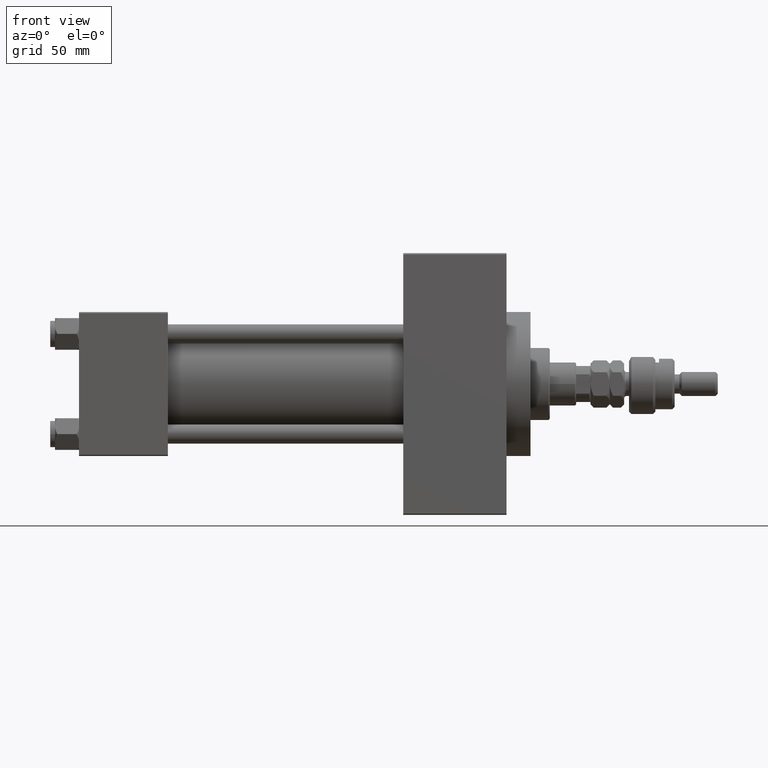
[diagram: clean part render]
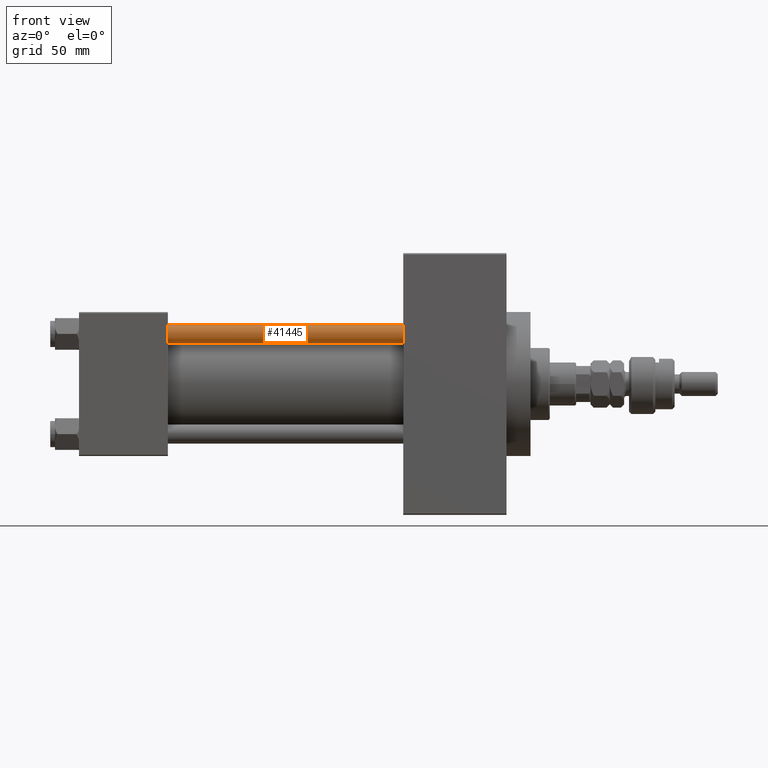
[diagram: same view with one face highlighted and labeled with its STEP entity id]
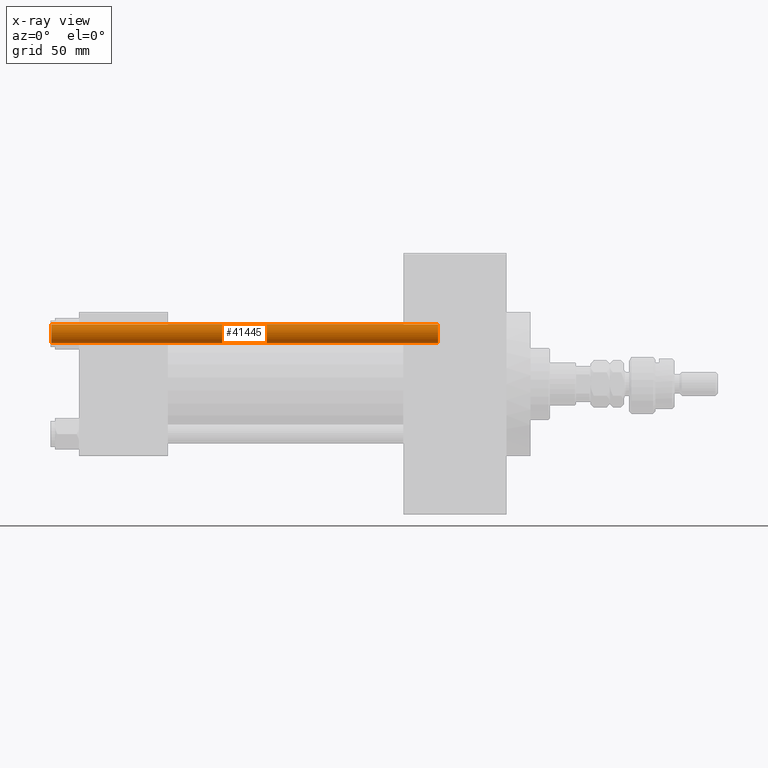
[diagram: x-ray of the same camera — body ghosted, the highlighted face saturated]
A machine part, front view. The second image highlights one B-rep face of the part: STEP entity #41445.
The next image is the same camera in x-ray: the body ghosted, the highlighted face saturated — about 0% of this face is hidden behind the body in this view.
In plain terms, the highlighted cylindrical surface (edge-blend (fillet) strip) has radius 4 mm, axis along (1, 0, 0).
Its self-contained STEP definition (entity closure, byte-faithful):
#1800 = ORIENTED_EDGE ( 'NONE', *, *, #2746, .T. ) ;
#2290 = DIRECTION ( 'NONE',  ( -0.000000000000000000, -0.000000000000000000, -1.000000000000000000 ) ) ;
#2746 = EDGE_CURVE ( 'NONE', #44244, #18114, #42664, .T. ) ;
#3228 = LINE ( 'NONE', #3976, #3536 ) ;
#3536 = VECTOR ( 'NONE', #39646, 1000.000000000000000 ) ;
#3976 = CARTESIAN_POINT ( 'NONE',  ( -4.000000000000000000, 0.000000000000000000, 162.0000000000000000 ) ) ;
#6979 = CYLINDRICAL_SURFACE ( 'NONE', #40331, 4.000000000000000000 ) ;
#7119 = ORIENTED_EDGE ( 'NONE', *, *, #12379, .T. ) ;
#12379 = EDGE_CURVE ( 'NONE', #18114, #15131, #17899, .T. ) ;
#14349 = CARTESIAN_POINT ( 'NONE',  ( -4.000000000000000000, 0.000000000000000000, 161.5000000000000284 ) ) ;
#14676 = CARTESIAN_POINT ( 'NONE',  ( -4.000000000000000000, 0.000000000000000000, 0.5000000000000281997 ) ) ;
#15131 = VERTEX_POINT ( 'NONE', #14676 ) ;
#15413 = CARTESIAN_POINT ( 'NONE',  ( 4.000000000000000000, 4.898587196589412829E-16, 161.5000000000000284 ) ) ;
#17899 = CIRCLE ( 'NONE', #34819, 4.000000000000000000 ) ;
#18114 = VERTEX_POINT ( 'NONE', #49025 ) ;
#18159 = EDGE_CURVE ( 'NONE', #43129, #15131, #3228, .T. ) ;
#18635 = DIRECTION ( 'NONE',  ( -0.000000000000000000, -0.000000000000000000, -1.000000000000000000 ) ) ;
#23162 = DIRECTION ( 'NONE',  ( -1.000000000000000000, 0.000000000000000000, 0.000000000000000000 ) ) ;
#23761 = ORIENTED_EDGE ( 'NONE', *, *, #18159, .F. ) ;
#24740 = CIRCLE ( 'NONE', #43299, 4.000000000000000000 ) ;
#29312 = DIRECTION ( 'NONE',  ( 0.000000000000000000, 0.000000000000000000, -1.000000000000000000 ) ) ;
#30889 = CARTESIAN_POINT ( 'NONE',  ( 0.000000000000000000, 0.000000000000000000, 0.5000000000000281997 ) ) ;
#31141 = DIRECTION ( 'NONE',  ( 1.000000000000000000, 0.000000000000000000, 0.000000000000000000 ) ) ;
#33817 = EDGE_CURVE ( 'NONE', #43129, #44244, #24740, .T. ) ;
#34819 = AXIS2_PLACEMENT_3D ( 'NONE', #30889, #46321, #31141 ) ;
#37574 = ORIENTED_EDGE ( 'NONE', *, *, #33817, .T. ) ;
#38587 = FACE_OUTER_BOUND ( 'NONE', #45343, .T. ) ;
#39646 = DIRECTION ( 'NONE',  ( -0.000000000000000000, -0.000000000000000000, -1.000000000000000000 ) ) ;
#40331 = AXIS2_PLACEMENT_3D ( 'NONE', #42130, #18635, #23162 ) ;
#41065 = VECTOR ( 'NONE', #2290, 1000.000000000000000 ) ;
#41445 = ADVANCED_FACE ( 'NONE', ( #38587 ), #6979, .T. ) ;
#42130 = CARTESIAN_POINT ( 'NONE',  ( 0.000000000000000000, 0.000000000000000000, 162.0000000000000000 ) ) ;
#42664 = LINE ( 'NONE', #50007, #41065 ) ;
#43129 = VERTEX_POINT ( 'NONE', #14349 ) ;
#43299 = AXIS2_PLACEMENT_3D ( 'NONE', #48287, #29312, #44499 ) ;
#44244 = VERTEX_POINT ( 'NONE', #15413 ) ;
#44499 = DIRECTION ( 'NONE',  ( 1.000000000000000000, 0.000000000000000000, 0.000000000000000000 ) ) ;
#45343 = EDGE_LOOP ( 'NONE', ( #37574, #1800, #7119, #23761 ) ) ;
#46321 = DIRECTION ( 'NONE',  ( -0.000000000000000000, -0.000000000000000000, 1.000000000000000000 ) ) ;
#48287 = CARTESIAN_POINT ( 'NONE',  ( 0.000000000000000000, 0.000000000000000000, 161.5000000000000284 ) ) ;
#49025 = CARTESIAN_POINT ( 'NONE',  ( 4.000000000000000000, 4.898587196589412829E-16, 0.5000000000000281997 ) ) ;
#50007 = CARTESIAN_POINT ( 'NONE',  ( 4.000000000000000000, 4.898587196589412829E-16, 162.0000000000000000 ) ) ;